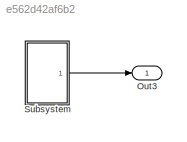
MODEL slx_e562d42af6b2
KIND model
CONFIG AbsTol = auto
CONFIG EnableMultiTasking = off
CONFIG FixedStep = auto
CONFIG MaxStep = auto
CONFIG MinStep = auto
CONFIG RelTol = 1e-3
CONFIG SampleTimeConstraint = Unconstrained
CONFIG Solver = VariableStepAuto
CONFIG SolverName = VariableStepAuto
CONFIG StartTime = 0.0
CONFIG StopTime = 0.5
WORKSPACE source: mxarray member
WORKSPACE A: Simulink.Parameter (value not decoded)
WORKSPACE B: Simulink.Parameter (value not decoded)
WORKSPACE C: Simulink.Parameter (value not decoded)
WORKSPACE D: Simulink.Parameter (value not decoded)
WORKSPACE E: Simulink.Parameter (value not decoded)
WORKSPACE F: Simulink.Parameter (value not decoded)
BLOCK [Outport] Out3
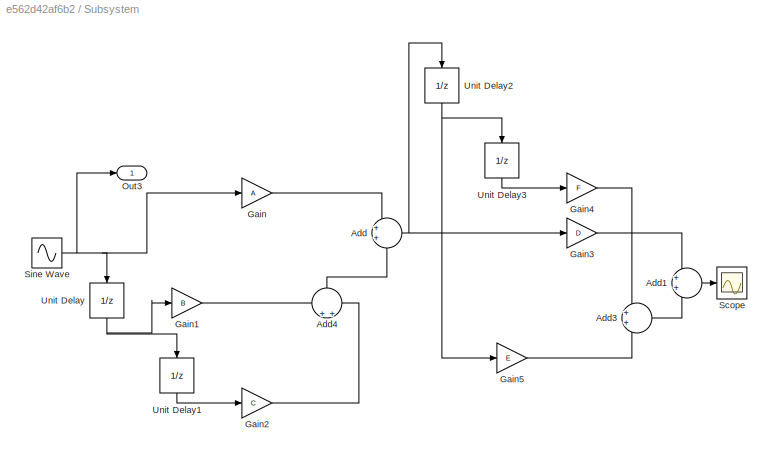
BLOCK [SubSystem] Subsystem
  Ports = [0, 1]
  RequestExecContextInheritance = off
BLOCK [Sum] Subsystem/Add
  Ports = [2, 1]
BLOCK [Sum] Subsystem/Add1
  Ports = [2, 1]
BLOCK [Sum] Subsystem/Add3
  Ports = [2, 1]
BLOCK [Sum] Subsystem/Add4
  NameLocation = right
  Ports = [2, 1]
BLOCK [Gain] Subsystem/Gain
  Gain = A
BLOCK [Gain] Subsystem/Gain1
  Gain = B
BLOCK [Gain] Subsystem/Gain2
  Gain = C
BLOCK [Gain] Subsystem/Gain3
  Gain = D
BLOCK [Gain] Subsystem/Gain4
  Gain = F
BLOCK [Gain] Subsystem/Gain5
  Gain = E
BLOCK [Outport] Subsystem/Out3
BLOCK [Scope] Subsystem/Scope
  Floating = off
  NumInputPorts = 1
  Ports = [1]
  ScopeSpecificationString = Simulink.scopes.TimeScopeBlockCfg('CurrentConfiguration', extmgr.ConfigurationSet(extmgr.Configuration('Core','General UI',true),extmgr.Configuration('Core','Source UI',true),extmgr.Configuration('Sources','WiredSimulink',true),extmgr.Configuration('Visuals','Time Domain',true),extmgr.Configuration('Tools','Plot Navigation',true),extmgr.Configuration('Tools','Measurements',true)),'Version','2020a'...<+1ch>
BLOCK [Sin] Subsystem/Sine Wave
  Amplitude = 10
  Frequency = 50
  Ports = [0, 1]
  SampleTime = 0
BLOCK [UnitDelay] Subsystem/Unit Delay
  HasFrameUpgradeWarning = on
  NameLocation = left
  SampleTime = -1
BLOCK [UnitDelay] Subsystem/Unit Delay1
  HasFrameUpgradeWarning = on
  NameLocation = left
  SampleTime = -1
BLOCK [UnitDelay] Subsystem/Unit Delay2
  HasFrameUpgradeWarning = on
  NameLocation = left
  SampleTime = -1
BLOCK [UnitDelay] Subsystem/Unit Delay3
  HasFrameUpgradeWarning = on
  NameLocation = left
  SampleTime = -1
LINE Subsystem/Add1:1 -> Subsystem/Scope:1
LINE Subsystem/Add3:1 -> Subsystem/Add1:2
LINE Subsystem/Add4:1 -> Subsystem/Add:2
NET Subsystem/Add:1 -> Subsystem/Gain3:1, Subsystem/Unit Delay2:1
LINE Subsystem/Gain1:1 -> Subsystem/Add4:1
LINE Subsystem/Gain2:1 -> Subsystem/Add4:2
LINE Subsystem/Gain3:1 -> Subsystem/Add1:1
LINE Subsystem/Gain4:1 -> Subsystem/Add3:1
LINE Subsystem/Gain5:1 -> Subsystem/Add3:2
LINE Subsystem/Gain:1 -> Subsystem/Add:1
NET Subsystem/Sine Wave:1 -> Subsystem/Gain:1, Subsystem/Out3:1, Subsystem/Unit Delay:1
LINE Subsystem/Unit Delay1:1 -> Subsystem/Gain2:1
NET Subsystem/Unit Delay2:1 -> Subsystem/Gain5:1, Subsystem/Unit Delay3:1
LINE Subsystem/Unit Delay3:1 -> Subsystem/Gain4:1
NET Subsystem/Unit Delay:1 -> Subsystem/Gain1:1, Subsystem/Unit Delay1:1
LINE Subsystem:1 -> Out3:1
note: NET lines group one-source signal fan-out (src -> all destinations, sorted); 1:1 wires keep LINE
